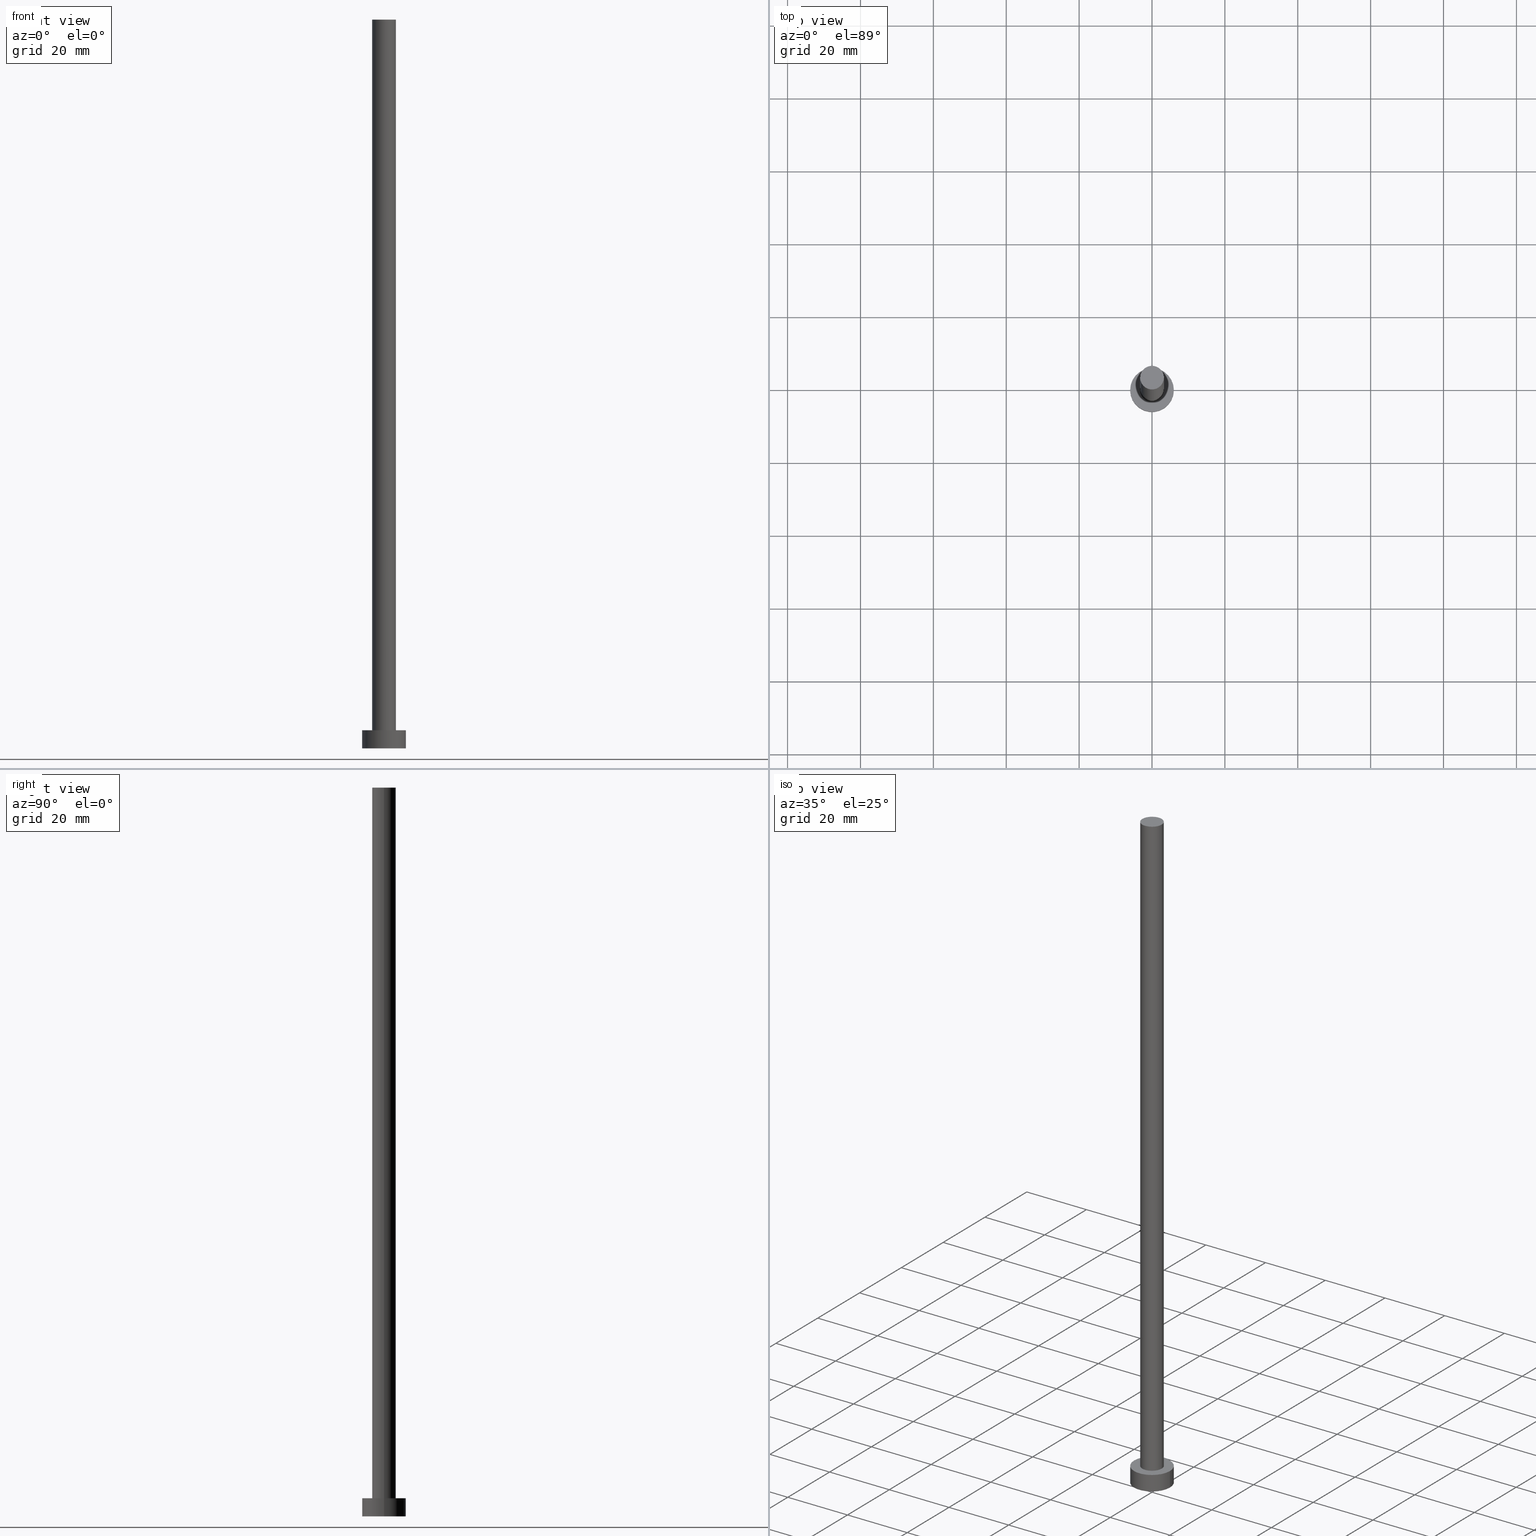
[diagram: canonical four-view strip — front | top / right | iso, engineering-drawing reading convention]
A machine part, canonical four-view strip (front | top / right | iso — engineering-drawing reading convention). The complete STEP part file that produces these views, byte-faithful:
ISO-10303-21;
HEADER;
FILE_DESCRIPTION (( 'STEP AP203' ),
    '1' );
FILE_NAME ('0d86.STEP',
    '2023-02-13T11:48:32',
    ( '' ),
    ( '' ),
    'SwSTEP 2.0',
    'SolidWorks 2019',
    '' );
FILE_SCHEMA (( 'CONFIG_CONTROL_DESIGN' ));
ENDSEC;

DATA;
#1 = AXIS2_PLACEMENT_3D ( 'NONE', #92, #51, #233 ) ;
#2 = COORDINATED_UNIVERSAL_TIME_OFFSET ( 1, 0, .AHEAD. ) ;
#3 = DIRECTION ( 'NONE',  ( 0.000000000000000000, 0.000000000000000000, 1.000000000000000000 ) ) ;
#4 = EDGE_LOOP ( 'NONE', ( #204, #152 ) ) ;
#5 =( NAMED_UNIT ( * ) SI_UNIT ( $, .STERADIAN. ) SOLID_ANGLE_UNIT ( ) );
#6 = AXIS2_PLACEMENT_3D ( 'NONE', #149, #11, #191 ) ;
#7 = VECTOR ( 'NONE', #47, 1000.000000000000000 ) ;
#8 = CARTESIAN_POINT ( 'NONE',  ( -6.000000000000000888, 0.000000000000000000, 0.000000000000000000 ) ) ;
#9 = EDGE_CURVE ( 'NONE', #182, #213, #139, .T. ) ;
#10 = DIRECTION ( 'NONE',  ( 1.000000000000000000, 0.000000000000000000, 0.000000000000000000 ) ) ;
#11 = DIRECTION ( 'NONE',  ( 0.000000000000000000, 0.000000000000000000, 1.000000000000000000 ) ) ;
#12 = CIRCLE ( 'NONE', #6, 3.250000000000000444 ) ;
#13 = FACE_OUTER_BOUND ( 'NONE', #17, .T. ) ;
#14 = CYLINDRICAL_SURFACE ( 'NONE', #1, 3.250000000000000444 ) ;
#15 = ORIENTED_EDGE ( 'NONE', *, *, #31, .T. ) ;
#16 = DIRECTION ( 'NONE',  ( -0.000000000000000000, -0.000000000000000000, -1.000000000000000000 ) ) ;
#17 = EDGE_LOOP ( 'NONE', ( #245, #160, #132, #82 ) ) ;
#18 = AXIS2_PLACEMENT_3D ( 'NONE', #58, #109, #127 ) ;
#19 = COORDINATED_UNIVERSAL_TIME_OFFSET ( 1, 0, .AHEAD. ) ;
#20 = CALENDAR_DATE ( 2023, 13, 2 ) ;
#21 = DATE_AND_TIME ( #196, #103 ) ;
#22 = CIRCLE ( 'NONE', #25, 6.000000000000000888 ) ;
#23 = APPROVAL_DATE_TIME ( #83, #162 ) ;
#24 = VERTEX_POINT ( 'NONE', #202 ) ;
#25 = AXIS2_PLACEMENT_3D ( 'NONE', #227, #243, #165 ) ;
#26 = PRODUCT_RELATED_PRODUCT_CATEGORY ( 'detail', '', ( #220 ) ) ;
#27 = DIRECTION ( 'NONE',  ( 1.000000000000000000, 0.000000000000000000, 0.000000000000000000 ) ) ;
#28 = ORIENTED_EDGE ( 'NONE', *, *, #206, .T. ) ;
#29 = FACE_OUTER_BOUND ( 'NONE', #130, .T. ) ;
#30 = DIRECTION ( 'NONE',  ( 1.000000000000000000, 0.000000000000000000, -0.000000000000000000 ) ) ;
#31 = EDGE_CURVE ( 'NONE', #24, #213, #115, .T. ) ;
#32 =( GEOMETRIC_REPRESENTATION_CONTEXT ( 3 ) GLOBAL_UNCERTAINTY_ASSIGNED_CONTEXT ( ( #225 ) ) GLOBAL_UNIT_ASSIGNED_CONTEXT ( ( #209, #64, #5 ) ) REPRESENTATION_CONTEXT ( 'NONE', 'WORKASPACE' ) );
#33 = ORIENTED_EDGE ( 'NONE', *, *, #9, .T. ) ;
#34 = DIRECTION ( 'NONE',  ( 1.000000000000000000, 0.000000000000000000, 0.000000000000000000 ) ) ;
#35 = ORIENTED_EDGE ( 'NONE', *, *, #44, .F. ) ;
#36 = CARTESIAN_POINT ( 'NONE',  ( 0.000000000000000000, 0.000000000000000000, 0.000000000000000000 ) ) ;
#37 = ADVANCED_BREP_SHAPE_REPRESENTATION ( '0d86', ( #143, #123 ), #32 ) ;
#38 = APPROVAL_STATUS ( 'not_yet_approved' ) ;
#39 = PERSON_AND_ORGANIZATION_ROLE ( 'design_supplier' ) ;
#40 = PERSON_AND_ORGANIZATION_ROLE ( 'creator' ) ;
#41 = EDGE_CURVE ( 'NONE', #251, #57, #223, .T. ) ;
#42 = AXIS2_PLACEMENT_3D ( 'NONE', #36, #150, #247 ) ;
#43 = PERSON ( 'NEUR�EN�', 'NEUR�EN�', 'NEUR�EN�', ('NEUR�EN�'), ('NEUR�EN�'), ('NEUR�EN�') ) ;
#44 = EDGE_CURVE ( 'NONE', #71, #24, #45, .T. ) ;
#45 = LINE ( 'NONE', #200, #189 ) ;
#46 = CC_DESIGN_APPROVAL ( #162, ( #158 ) ) ;
#47 = DIRECTION ( 'NONE',  ( -0.000000000000000000, -0.000000000000000000, -1.000000000000000000 ) ) ;
#48 = ORIENTED_EDGE ( 'NONE', *, *, #129, .F. ) ;
#49 = DIRECTION ( 'NONE',  ( -0.000000000000000000, -0.000000000000000000, -1.000000000000000000 ) ) ;
#50 = CLOSED_SHELL ( 'NONE', ( #140, #254, #172, #180, #101, #105, #121 ) ) ;
#51 = DIRECTION ( 'NONE',  ( -0.000000000000000000, -0.000000000000000000, -1.000000000000000000 ) ) ;
#52 = CC_DESIGN_PERSON_AND_ORGANIZATION_ASSIGNMENT ( #157, #39, ( #158 ) ) ;
#53 = FACE_OUTER_BOUND ( 'NONE', #4, .T. ) ;
#54 = DIRECTION ( 'NONE',  ( -1.000000000000000000, 0.000000000000000000, 0.000000000000000000 ) ) ;
#55 = ORIENTED_EDGE ( 'NONE', *, *, #89, .T. ) ;
#56 = LINE ( 'NONE', #249, #170 ) ;
#57 = VERTEX_POINT ( 'NONE', #8 ) ;
#58 = CARTESIAN_POINT ( 'NONE',  ( 0.000000000000000000, 0.000000000000000000, 5.000000000000000000 ) ) ;
#59 = EDGE_CURVE ( 'NONE', #57, #251, #22, .T. ) ;
#60 = CALENDAR_DATE ( 2023, 13, 2 ) ;
#61 = AXIS2_PLACEMENT_3D ( 'NONE', #208, #211, #30 ) ;
#62 = PERSON_AND_ORGANIZATION_ROLE ( 'classification_officer' ) ;
#63 = CALENDAR_DATE ( 2023, 13, 2 ) ;
#64 =( NAMED_UNIT ( * ) PLANE_ANGLE_UNIT ( ) SI_UNIT ( $, .RADIAN. ) );
#65 = ORIENTED_EDGE ( 'NONE', *, *, #59, .F. ) ;
#66 = PRODUCT_DEFINITION ( 'NEZN�M�', '', #158, #214 ) ;
#67 = CARTESIAN_POINT ( 'NONE',  ( 0.000000000000000000, 0.000000000000000000, 0.000000000000000000 ) ) ;
#68 = CC_DESIGN_PERSON_AND_ORGANIZATION_ASSIGNMENT ( #237, #62, ( #179 ) ) ;
#69 = ORIENTED_EDGE ( 'NONE', *, *, #41, .F. ) ;
#70 = CARTESIAN_POINT ( 'NONE',  ( -6.000000000000000888, 0.000000000000000000, 5.000000000000000000 ) ) ;
#71 = VERTEX_POINT ( 'NONE', #142 ) ;
#72 = CYLINDRICAL_SURFACE ( 'NONE', #111, 3.250000000000000444 ) ;
#73 = AXIS2_PLACEMENT_3D ( 'NONE', #67, #88, #27 ) ;
#74 = ORGANIZATION ( 'NEUR�EN�', 'NEUR�EN�', '' ) ;
#75 = CC_DESIGN_PERSON_AND_ORGANIZATION_ASSIGNMENT ( #176, #181, ( #66 ) ) ;
#76 = CARTESIAN_POINT ( 'NONE',  ( 6.000000000000000888, 7.347880794884120722E-16, 5.000000000000000000 ) ) ;
#77 = EDGE_LOOP ( 'NONE', ( #80, #193 ) ) ;
#78 = FACE_OUTER_BOUND ( 'NONE', #253, .T. ) ;
#79 = EDGE_CURVE ( 'NONE', #182, #71, #216, .T. ) ;
#80 = ORIENTED_EDGE ( 'NONE', *, *, #206, .F. ) ;
#81 = PERSON_AND_ORGANIZATION ( #43, #74 ) ;
#82 = ORIENTED_EDGE ( 'NONE', *, *, #89, .F. ) ;
#83 = DATE_AND_TIME ( #20, #187 ) ;
#84 = APPROVAL_PERSON_ORGANIZATION ( #100, #162, #104 ) ;
#85 = EDGE_LOOP ( 'NONE', ( #112, #145, #15, #98 ) ) ;
#86 = DATE_TIME_ROLE ( 'classification_date' ) ;
#87 = AXIS2_PLACEMENT_3D ( 'NONE', #113, #174, #153 ) ;
#88 = DIRECTION ( 'NONE',  ( 0.000000000000000000, 0.000000000000000000, 1.000000000000000000 ) ) ;
#89 = EDGE_CURVE ( 'NONE', #107, #57, #167, .T. ) ;
#90 = DIRECTION ( 'NONE',  ( 1.000000000000000000, 0.000000000000000000, 0.000000000000000000 ) ) ;
#91 = ORIENTED_EDGE ( 'NONE', *, *, #108, .F. ) ;
#92 = CARTESIAN_POINT ( 'NONE',  ( 0.000000000000000000, 0.000000000000000000, 200.0000000000000000 ) ) ;
#93 = CYLINDRICAL_SURFACE ( 'NONE', #164, 6.000000000000000888 ) ;
#94 = LOCAL_TIME ( 12, 48, 32.00000000000000000, #252 ) ;
#95 = DIRECTION ( 'NONE',  ( -0.000000000000000000, -0.000000000000000000, -1.000000000000000000 ) ) ;
#96 = PLANE ( 'NONE',  #42 ) ;
#97 = CYLINDRICAL_SURFACE ( 'NONE', #87, 6.000000000000000888 ) ;
#98 = ORIENTED_EDGE ( 'NONE', *, *, #9, .F. ) ;
#99 = APPROVAL_DATE_TIME ( #199, #155 ) ;
#100 = PERSON_AND_ORGANIZATION ( #43, #74 ) ;
#101 = ADVANCED_FACE ( 'NONE', ( #246 ), #96, .F. ) ;
#102 = APPROVAL_STATUS ( 'not_yet_approved' ) ;
#103 = LOCAL_TIME ( 12, 48, 32.00000000000000000, #118 ) ;
#104 = APPROVAL_ROLE ( '' ) ;
#105 = ADVANCED_FACE ( 'NONE', ( #78 ), #72, .T. ) ;
#106 = AXIS2_PLACEMENT_3D ( 'NONE', #171, #175, #114 ) ;
#107 = VERTEX_POINT ( 'NONE', #230 ) ;
#108 = EDGE_CURVE ( 'NONE', #107, #185, #194, .T. ) ;
#109 = DIRECTION ( 'NONE',  ( 0.000000000000000000, 0.000000000000000000, 1.000000000000000000 ) ) ;
#110 = FACE_OUTER_BOUND ( 'NONE', #154, .T. ) ;
#111 = AXIS2_PLACEMENT_3D ( 'NONE', #125, #133, #229 ) ;
#112 = ORIENTED_EDGE ( 'NONE', *, *, #117, .F. ) ;
#113 = CARTESIAN_POINT ( 'NONE',  ( 0.000000000000000000, 0.000000000000000000, 5.000000000000000000 ) ) ;
#114 = DIRECTION ( 'NONE',  ( 1.000000000000000000, 0.000000000000000000, 0.000000000000000000 ) ) ;
#115 = CIRCLE ( 'NONE', #232, 3.250000000000000444 ) ;
#116 = PERSON_AND_ORGANIZATION ( #43, #74 ) ;
#117 = EDGE_CURVE ( 'NONE', #71, #182, #12, .T. ) ;
#118 = COORDINATED_UNIVERSAL_TIME_OFFSET ( 1, 0, .AHEAD. ) ;
#119 = SECURITY_CLASSIFICATION_LEVEL ( 'unclassified' ) ;
#120 = PRODUCT_DEFINITION_SHAPE ( 'NONE', 'NONE',  #66 ) ;
#121 = ADVANCED_FACE ( 'NONE', ( #53 ), #126, .T. ) ;
#122 = AXIS2_PLACEMENT_3D ( 'NONE', #190, #207, #10 ) ;
#123 = AXIS2_PLACEMENT_3D ( 'NONE', #177, #3, #136 ) ;
#124 = CARTESIAN_POINT ( 'NONE',  ( 0.000000000000000000, 0.000000000000000000, 5.000000000000000000 ) ) ;
#125 = CARTESIAN_POINT ( 'NONE',  ( 0.000000000000000000, 0.000000000000000000, 200.0000000000000000 ) ) ;
#126 = PLANE ( 'NONE',  #61 ) ;
#127 = DIRECTION ( 'NONE',  ( 1.000000000000000000, 0.000000000000000000, -0.000000000000000000 ) ) ;
#128 = CC_DESIGN_APPROVAL ( #222, ( #179 ) ) ;
#129 = EDGE_CURVE ( 'NONE', #185, #251, #56, .T. ) ;
#130 = EDGE_LOOP ( 'NONE', ( #210, #235 ) ) ;
#131 = CARTESIAN_POINT ( 'NONE',  ( 6.000000000000000888, 7.347880794884120722E-16, 0.000000000000000000 ) ) ;
#132 = ORIENTED_EDGE ( 'NONE', *, *, #41, .T. ) ;
#133 = DIRECTION ( 'NONE',  ( -0.000000000000000000, -0.000000000000000000, -1.000000000000000000 ) ) ;
#134 = DATE_AND_TIME ( #60, #94 ) ;
#135 = LOCAL_TIME ( 12, 48, 32.00000000000000000, #19 ) ;
#136 = DIRECTION ( 'NONE',  ( 1.000000000000000000, 0.000000000000000000, 0.000000000000000000 ) ) ;
#137 = APPROVAL_DATE_TIME ( #239, #222 ) ;
#138 = EDGE_CURVE ( 'NONE', #185, #107, #146, .T. ) ;
#139 = LINE ( 'NONE', #156, #7 ) ;
#140 = ADVANCED_FACE ( 'NONE', ( #148 ), #14, .T. ) ;
#141 = AXIS2_PLACEMENT_3D ( 'NONE', #226, #188, #90 ) ;
#142 = CARTESIAN_POINT ( 'NONE',  ( 3.250000000000000444, 3.980102097228898231E-16, 200.0000000000000000 ) ) ;
#143 = MANIFOLD_SOLID_BREP ( 'P�idat vysunut�m3', #50 ) ;
#144 = CC_DESIGN_PERSON_AND_ORGANIZATION_ASSIGNMENT ( #116, #40, ( #158 ) ) ;
#145 = ORIENTED_EDGE ( 'NONE', *, *, #44, .T. ) ;
#146 = CIRCLE ( 'NONE', #106, 6.000000000000000888 ) ;
#147 = DIRECTION ( 'NONE',  ( 0.000000000000000000, 0.000000000000000000, 1.000000000000000000 ) ) ;
#148 = FACE_OUTER_BOUND ( 'NONE', #85, .T. ) ;
#149 = CARTESIAN_POINT ( 'NONE',  ( 0.000000000000000000, 0.000000000000000000, 200.0000000000000000 ) ) ;
#150 = DIRECTION ( 'NONE',  ( 0.000000000000000000, 0.000000000000000000, 1.000000000000000000 ) ) ;
#151 = VECTOR ( 'NONE', #49, 1000.000000000000000 ) ;
#152 = ORIENTED_EDGE ( 'NONE', *, *, #117, .T. ) ;
#153 = DIRECTION ( 'NONE',  ( -1.000000000000000000, 0.000000000000000000, 0.000000000000000000 ) ) ;
#154 = EDGE_LOOP ( 'NONE', ( #48, #91, #55, #228 ) ) ;
#155 = APPROVAL ( #38, 'NEUR�EN�' ) ;
#156 = CARTESIAN_POINT ( 'NONE',  ( -3.250000000000000444, 0.000000000000000000, 200.0000000000000000 ) ) ;
#157 = PERSON_AND_ORGANIZATION ( #43, #74 ) ;
#158 = PRODUCT_DEFINITION_FORMATION_WITH_SPECIFIED_SOURCE ( 'LIBOVOLN�', '', #220, .NOT_KNOWN. ) ;
#159 = CALENDAR_DATE ( 2023, 13, 2 ) ;
#160 = ORIENTED_EDGE ( 'NONE', *, *, #129, .T. ) ;
#161 = PERSON_AND_ORGANIZATION ( #43, #74 ) ;
#162 = APPROVAL ( #178, 'NEUR�EN�' ) ;
#163 = APPROVAL_ROLE ( '' ) ;
#164 = AXIS2_PLACEMENT_3D ( 'NONE', #169, #95, #54 ) ;
#165 = DIRECTION ( 'NONE',  ( 1.000000000000000000, 0.000000000000000000, 0.000000000000000000 ) ) ;
#166 = CC_DESIGN_SECURITY_CLASSIFICATION ( #179, ( #158 ) ) ;
#167 = LINE ( 'NONE', #70, #151 ) ;
#168 = EDGE_LOOP ( 'NONE', ( #65, #69 ) ) ;
#169 = CARTESIAN_POINT ( 'NONE',  ( 0.000000000000000000, 0.000000000000000000, 5.000000000000000000 ) ) ;
#170 = VECTOR ( 'NONE', #16, 1000.000000000000000 ) ;
#171 = CARTESIAN_POINT ( 'NONE',  ( 0.000000000000000000, 0.000000000000000000, 5.000000000000000000 ) ) ;
#172 = ADVANCED_FACE ( 'NONE', ( #110 ), #97, .T. ) ;
#173 = FACE_BOUND ( 'NONE', #77, .T. ) ;
#174 = DIRECTION ( 'NONE',  ( -0.000000000000000000, -0.000000000000000000, -1.000000000000000000 ) ) ;
#175 = DIRECTION ( 'NONE',  ( 0.000000000000000000, 0.000000000000000000, 1.000000000000000000 ) ) ;
#176 = PERSON_AND_ORGANIZATION ( #43, #74 ) ;
#177 = CARTESIAN_POINT ( 'NONE',  ( 0.000000000000000000, 0.000000000000000000, 0.000000000000000000 ) ) ;
#178 = APPROVAL_STATUS ( 'not_yet_approved' ) ;
#179 = SECURITY_CLASSIFICATION ( '', '', #119 ) ;
#180 = ADVANCED_FACE ( 'NONE', ( #173, #29 ), #231, .T. ) ;
#181 = PERSON_AND_ORGANIZATION_ROLE ( 'creator' ) ;
#182 = VERTEX_POINT ( 'NONE', #192 ) ;
#183 = APPROVAL_PERSON_ORGANIZATION ( #81, #155, #163 ) ;
#184 = CIRCLE ( 'NONE', #122, 3.250000000000000444 ) ;
#185 = VERTEX_POINT ( 'NONE', #76 ) ;
#186 = APPLICATION_CONTEXT ( 'configuration controlled 3d designs of mechanical parts and assemblies' ) ;
#187 = LOCAL_TIME ( 12, 48, 32.00000000000000000, #217 ) ;
#188 = DIRECTION ( 'NONE',  ( 0.000000000000000000, 0.000000000000000000, 1.000000000000000000 ) ) ;
#189 = VECTOR ( 'NONE', #205, 1000.000000000000000 ) ;
#190 = CARTESIAN_POINT ( 'NONE',  ( 0.000000000000000000, 0.000000000000000000, 5.000000000000000000 ) ) ;
#191 = DIRECTION ( 'NONE',  ( 1.000000000000000000, 0.000000000000000000, 0.000000000000000000 ) ) ;
#192 = CARTESIAN_POINT ( 'NONE',  ( -3.250000000000000444, 0.000000000000000000, 200.0000000000000000 ) ) ;
#193 = ORIENTED_EDGE ( 'NONE', *, *, #31, .F. ) ;
#194 = CIRCLE ( 'NONE', #236, 6.000000000000000888 ) ;
#195 = APPLICATION_PROTOCOL_DEFINITION ( 'international standard', 'config_control_design', 1994, #186 ) ;
#196 = CALENDAR_DATE ( 2023, 13, 2 ) ;
#197 = APPROVAL_ROLE ( '' ) ;
#198 = APPROVAL_PERSON_ORGANIZATION ( #161, #222, #197 ) ;
#199 = DATE_AND_TIME ( #159, #135 ) ;
#200 = CARTESIAN_POINT ( 'NONE',  ( 3.250000000000000444, 3.980102097228898231E-16, 200.0000000000000000 ) ) ;
#201 = CC_DESIGN_APPROVAL ( #155, ( #66 ) ) ;
#202 = CARTESIAN_POINT ( 'NONE',  ( 3.250000000000000444, 3.980102097228898231E-16, 5.000000000000000000 ) ) ;
#203 = CC_DESIGN_DATE_AND_TIME_ASSIGNMENT ( #21, #86, ( #179 ) ) ;
#204 = ORIENTED_EDGE ( 'NONE', *, *, #79, .T. ) ;
#205 = DIRECTION ( 'NONE',  ( -0.000000000000000000, -0.000000000000000000, -1.000000000000000000 ) ) ;
#206 = EDGE_CURVE ( 'NONE', #213, #24, #184, .T. ) ;
#207 = DIRECTION ( 'NONE',  ( 0.000000000000000000, 0.000000000000000000, 1.000000000000000000 ) ) ;
#208 = CARTESIAN_POINT ( 'NONE',  ( 0.000000000000000000, 0.000000000000000000, 200.0000000000000000 ) ) ;
#209 =( LENGTH_UNIT ( ) NAMED_UNIT ( * ) SI_UNIT ( .MILLI., .METRE. ) );
#210 = ORIENTED_EDGE ( 'NONE', *, *, #108, .T. ) ;
#211 = DIRECTION ( 'NONE',  ( 0.000000000000000000, 0.000000000000000000, 1.000000000000000000 ) ) ;
#212 = APPLICATION_CONTEXT ( 'configuration controlled 3d designs of mechanical parts and assemblies' ) ;
#213 = VERTEX_POINT ( 'NONE', #250 ) ;
#214 = DESIGN_CONTEXT ( 'detailed design', #212, 'design' ) ;
#215 = CARTESIAN_POINT ( 'NONE',  ( 0.000000000000000000, 0.000000000000000000, 5.000000000000000000 ) ) ;
#216 = CIRCLE ( 'NONE', #141, 3.250000000000000444 ) ;
#217 = COORDINATED_UNIVERSAL_TIME_OFFSET ( 1, 0, .AHEAD. ) ;
#218 = APPLICATION_PROTOCOL_DEFINITION ( 'international standard', 'config_control_design', 1994, #212 ) ;
#219 = DATE_TIME_ROLE ( 'creation_date' ) ;
#220 = PRODUCT ( '0d86', '0d86', '', ( #240 ) ) ;
#221 = SHAPE_DEFINITION_REPRESENTATION ( #120, #37 ) ;
#222 = APPROVAL ( #102, 'NEUR�EN�' ) ;
#223 = CIRCLE ( 'NONE', #73, 6.000000000000000888 ) ;
#224 = CC_DESIGN_PERSON_AND_ORGANIZATION_ASSIGNMENT ( #255, #238, ( #220 ) ) ;
#225 = UNCERTAINTY_MEASURE_WITH_UNIT (LENGTH_MEASURE( 1.000000000000000082E-05 ), #209, 'distance_accuracy_value', 'NONE');
#226 = CARTESIAN_POINT ( 'NONE',  ( 0.000000000000000000, 0.000000000000000000, 200.0000000000000000 ) ) ;
#227 = CARTESIAN_POINT ( 'NONE',  ( 0.000000000000000000, 0.000000000000000000, 0.000000000000000000 ) ) ;
#228 = ORIENTED_EDGE ( 'NONE', *, *, #59, .T. ) ;
#229 = DIRECTION ( 'NONE',  ( -1.000000000000000000, 0.000000000000000000, 0.000000000000000000 ) ) ;
#230 = CARTESIAN_POINT ( 'NONE',  ( -6.000000000000000888, 0.000000000000000000, 5.000000000000000000 ) ) ;
#231 = PLANE ( 'NONE',  #18 ) ;
#232 = AXIS2_PLACEMENT_3D ( 'NONE', #124, #241, #244 ) ;
#233 = DIRECTION ( 'NONE',  ( -1.000000000000000000, 0.000000000000000000, 0.000000000000000000 ) ) ;
#234 = ORIENTED_EDGE ( 'NONE', *, *, #79, .F. ) ;
#235 = ORIENTED_EDGE ( 'NONE', *, *, #138, .T. ) ;
#236 = AXIS2_PLACEMENT_3D ( 'NONE', #215, #147, #34 ) ;
#237 = PERSON_AND_ORGANIZATION ( #43, #74 ) ;
#238 = PERSON_AND_ORGANIZATION_ROLE ( 'design_owner' ) ;
#239 = DATE_AND_TIME ( #63, #242 ) ;
#240 = MECHANICAL_CONTEXT ( 'NONE', #186, 'mechanical' ) ;
#241 = DIRECTION ( 'NONE',  ( 0.000000000000000000, 0.000000000000000000, 1.000000000000000000 ) ) ;
#242 = LOCAL_TIME ( 12, 48, 32.00000000000000000, #2 ) ;
#243 = DIRECTION ( 'NONE',  ( 0.000000000000000000, 0.000000000000000000, 1.000000000000000000 ) ) ;
#244 = DIRECTION ( 'NONE',  ( 1.000000000000000000, 0.000000000000000000, 0.000000000000000000 ) ) ;
#245 = ORIENTED_EDGE ( 'NONE', *, *, #138, .F. ) ;
#246 = FACE_OUTER_BOUND ( 'NONE', #168, .T. ) ;
#247 = DIRECTION ( 'NONE',  ( 1.000000000000000000, 0.000000000000000000, -0.000000000000000000 ) ) ;
#248 = CC_DESIGN_DATE_AND_TIME_ASSIGNMENT ( #134, #219, ( #66 ) ) ;
#249 = CARTESIAN_POINT ( 'NONE',  ( 6.000000000000000888, 7.347880794884120722E-16, 5.000000000000000000 ) ) ;
#250 = CARTESIAN_POINT ( 'NONE',  ( -3.250000000000000444, 0.000000000000000000, 5.000000000000000000 ) ) ;
#251 = VERTEX_POINT ( 'NONE', #131 ) ;
#252 = COORDINATED_UNIVERSAL_TIME_OFFSET ( 1, 0, .AHEAD. ) ;
#253 = EDGE_LOOP ( 'NONE', ( #35, #234, #33, #28 ) ) ;
#254 = ADVANCED_FACE ( 'NONE', ( #13 ), #93, .T. ) ;
#255 = PERSON_AND_ORGANIZATION ( #43, #74 ) ;
ENDSEC;
END-ISO-10303-21;
